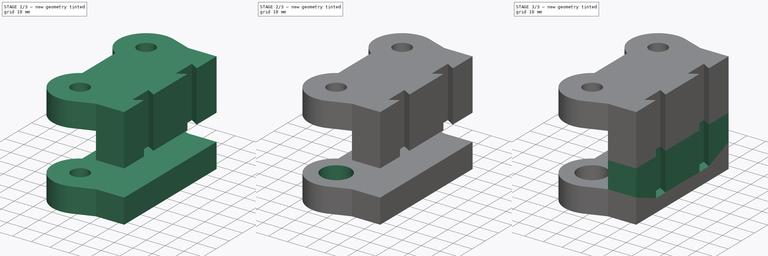
[diagram: build sequence overview — one tinted view per stage of 3, left to right]
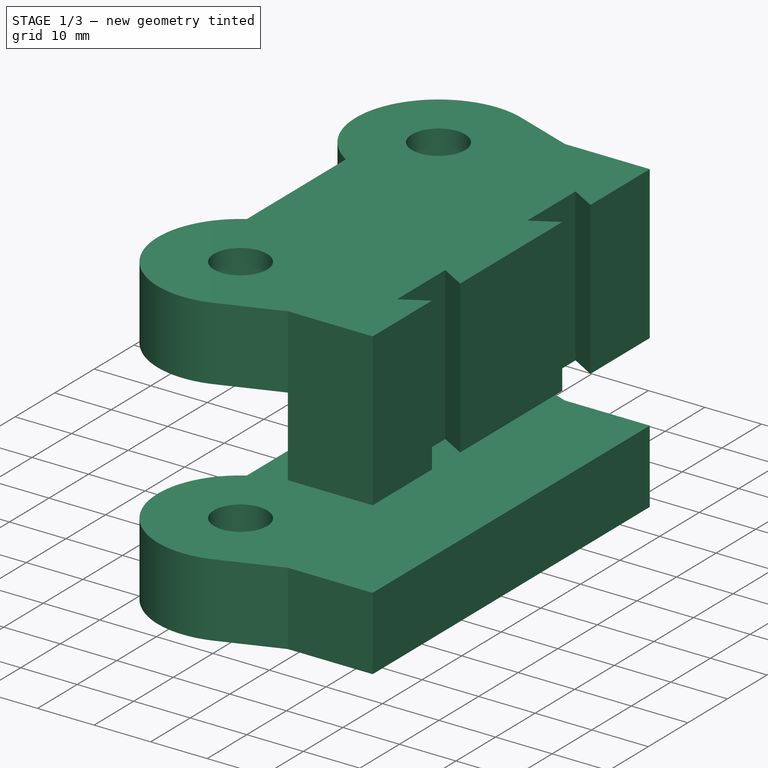
[diagram: stage 1 of 3 — iso view after this stage's code; geometry added in this stage tinted green]
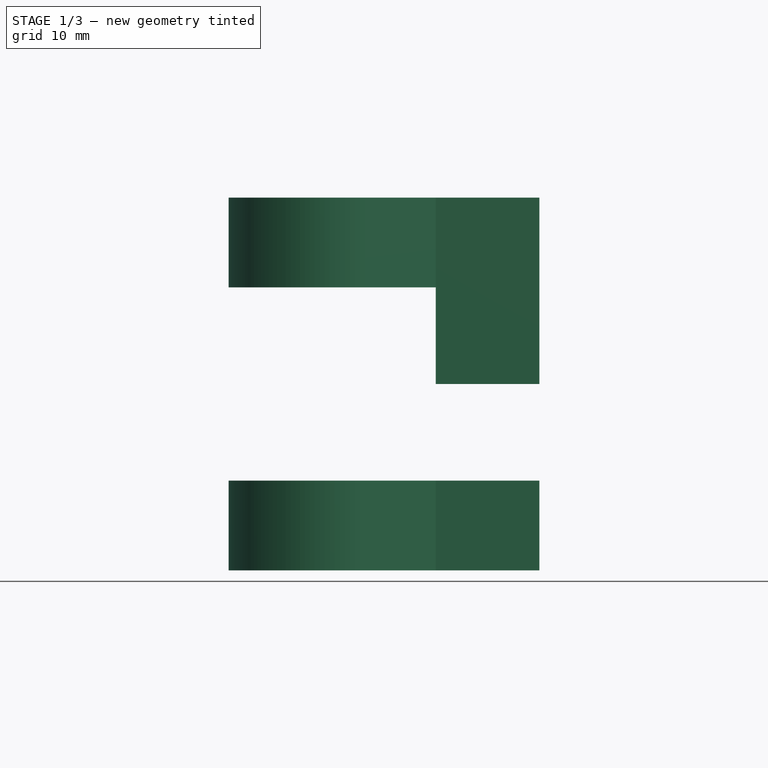
[diagram: stage 1 of 3 — front view after this stage's code; geometry added in this stage tinted green]
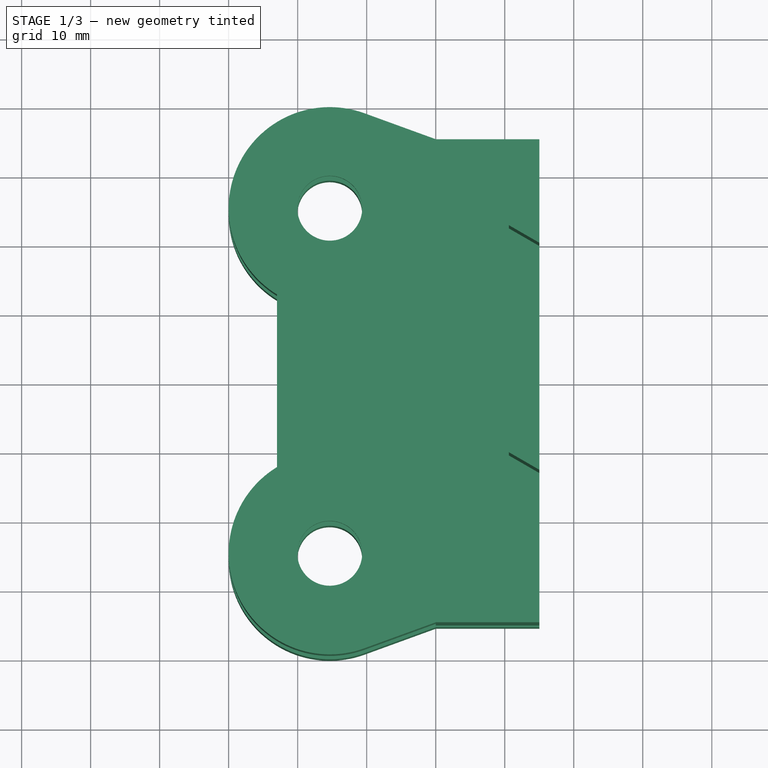
[diagram: stage 1 of 3 — top view after this stage's code; geometry added in this stage tinted green]
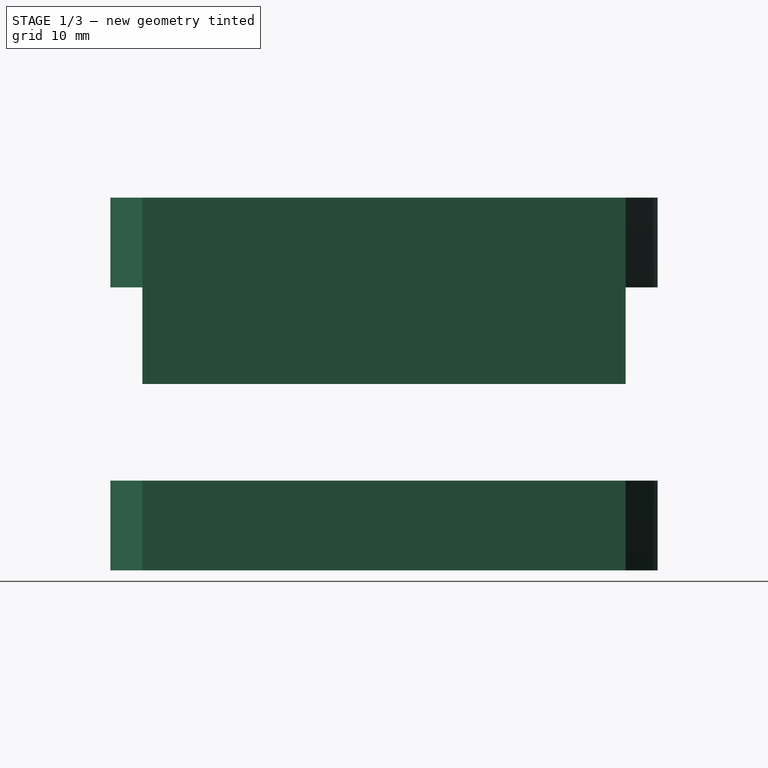
[diagram: stage 1 of 3 — right view after this stage's code; geometry added in this stage tinted green]
FCSTD DOCUMENT  (FreeCAD 0.15R4664 (Git))
Label: z_holder_WIP
License: All rights reserved
LicenseURL: http://en.wikipedia.org/wiki/All_rights_reserved
objects: Sketcher::SketchObject×5, PartDesign::Pocket×3, Part::Feature×3, PartDesign::Pad×2
note: 18 computed .brp shape members not serialized (recipe doc carries the construction recipe); baked Part::Feature solids carry a one-line shape summary decoded from their .brp

FEATURE [Sketcher::SketchObject] Sketch
  Placement = pos=(0,0,16) rot=(1,0,0;3.14159rad)
  sketch-geometry (12):
    g0: ArcOfCircle CenterX=14.65 CenterY=-64.65 CenterZ=0 NormalX=0 NormalY=0 NormalZ=1 Radius=14.65 StartAngle=2.11942 EndAngle=5.06145
    g1: ArcOfCircle CenterX=14.65 CenterY=-14.65 CenterZ=0 NormalX=0 NormalY=0 NormalZ=1 Radius=14.65 StartAngle=1.22173 EndAngle=4.16376
    g2: LineSegment StartX=30.009 StartY=-74.65 StartZ=0 EndX=19.6606 EndY=-78.4165 EndZ=0
    g3: LineSegment StartX=7.00981 StartY=-27.15 StartZ=0 EndX=7.00981 EndY=-52.15 EndZ=0
    g4: LineSegment StartX=19.6606 StartY=-0.883503 StartZ=0 EndX=30.009 EndY=-4.65 EndZ=0
    g5: LineSegment [constr] StartX=14.65 StartY=-14.65 StartZ=0 EndX=14.65 EndY=-64.65 EndZ=0
    g6: LineSegment [constr] StartX=30.009 StartY=-74.65 StartZ=0 EndX=30.009 EndY=-4.65 EndZ=0
    g7: Circle CenterX=14.65 CenterY=-14.65 CenterZ=0 NormalX=0 NormalY=0 NormalZ=1 Radius=4.7
    g8: Circle CenterX=14.65 CenterY=-64.65 CenterZ=0 NormalX=0 NormalY=0 NormalZ=1 Radius=4.7
    g9: LineSegment StartX=30.009 StartY=-74.65 StartZ=0 EndX=45.009 EndY=-74.65 EndZ=0
    g10: LineSegment StartX=45.009 StartY=-74.65 StartZ=0 EndX=45.009 EndY=-4.65 EndZ=0
    g11: LineSegment StartX=45.009 StartY=-4.65 StartZ=0 EndX=30.009 EndY=-4.65 EndZ=0
  constraints (35):
    c: Coincident(g2,g0)
    c: Coincident(g3,g1)
    c: Coincident(g3,g0)
    c: Coincident(g4,g1)
    c: Coincident(g5,g1)
    c: Coincident(g5,g0)
    c: Vertical(g5)
    c: DistanceY(g5) = -50
    c: Radius(g1) = 14.65
    c: Radius(g0) = 14.65
    c: DistanceY(g3) = -25
    c: Tangent(g1,g4) = 1.5708
    c: Tangent(g0,g2) = 1.5708
    c: Angle(g3,g4) = 1.22173
    c: Angle(g2,g3) = 1.22173
    c: Vertical(g3)
    c: Equal(g4,g2)
    c: Tangent(g-2,g1)
    c: Tangent(g1,g-1)
    c: Vertical(g6)
    c: Coincident(g4,g6)
    c: Coincident(g2,g6)
    c: DistanceY(g6) = 70
    c: Coincident(g7,g1)
    c: Radius(g7) = 4.7
    c: Coincident(g8,g0)
    c: Equal(g8,g7)
    c: Coincident(g2,g9)
    c: Horizontal(g9)
    c: Coincident(g9,g10)
    c: Vertical(g10)
    c: Coincident(g10,g11)
    c: Coincident(g11,g4)
    c: Horizontal(g11)
    c: DistanceX(g11) = -15
FEATURE [PartDesign::Pad] Pad
  Length = 13
  Length2 = 100
  Placement = pos=(0,0,16) rot=(1,0,0;3.14159rad)
  Sketch = -> Sketch
  Type = 0
FEATURE [Sketcher::SketchObject] Sketch004
  ExternalGeometry = -> [Pad002]
  Placement = pos=(0,79.3,30) rot=(1,0,0;3.14159rad)
  Support = -> Pad002 [Face13]
  sketch-geometry (11):
    g0: LineSegment [constr] StartX=45.009 StartY=74.65 StartZ=0 EndX=45.009 EndY=59.65 EndZ=0
    g1: LineSegment StartX=45.009 StartY=59.65 StartZ=0 EndX=40.5922 EndY=62.2 EndZ=0
    g2: LineSegment StartX=40.5922 StartY=62.2 StartZ=0 EndX=40.5922 EndY=50 EndZ=0
    g3: LineSegment StartX=40.5922 StartY=50 StartZ=0 EndX=45.009 EndY=52.55 EndZ=0
    g4: LineSegment [constr] StartX=45.009 StartY=52.55 StartZ=0 EndX=45.009 EndY=26.75 EndZ=0
    g5: LineSegment StartX=45.009 StartY=26.75 StartZ=0 EndX=40.5922 EndY=29.3 EndZ=0
    g6: LineSegment StartX=40.5922 StartY=29.3 StartZ=0 EndX=40.5922 EndY=17.1 EndZ=0
    g7: LineSegment StartX=40.5922 StartY=17.1 StartZ=0 EndX=45.009 EndY=19.65 EndZ=0
    g8: LineSegment [constr] StartX=45.009 StartY=19.65 StartZ=0 EndX=45.009 EndY=4.65 EndZ=0
    g9: LineSegment StartX=45.009 StartY=59.65 StartZ=0 EndX=45.009 EndY=52.55 EndZ=0
    g10: LineSegment StartX=45.009 StartY=26.75 StartZ=0 EndX=45.009 EndY=19.65 EndZ=0
  constraints (30):
    c: Coincident(g-3,g0)
    c: Vertical(g0)
    c: Coincident(g0,g1)
    c: Coincident(g1,g2)
    c: Vertical(g2)
    c: Coincident(g2,g3)
    c: Coincident(g3,g4)
    c: Vertical(g4)
    c: Coincident(g4,g5)
    c: Coincident(g5,g6)
    c: Vertical(g6)
    c: Coincident(g6,g7)
    c: Coincident(g7,g8)
    c: Coincident(g8,g-4)
    c: Vertical(g8)
    c: Equal(g0,g8)
    c: DistanceY(g0) = -15
    c: Coincident(g9,g0)
    c: Coincident(g9,g3)
    c: Vertical(g9)
    c: DistanceY(g9) = -7.1
    c: Coincident(g10,g4)
    c: Coincident(g10,g7)
    c: Equal(g10,g9)
    c: DistanceY(g2) = -12.2
    c: Angle(g1,g9) = 2.0944
    c: Angle(g9,g3) = 2.0944
    c: Equal(g6,g2)
    c: Angle(g5,g10) = 2.0944
    c: Angle(g10,g7) = 2.0944
FEATURE [PartDesign::Pocket] Pocket002
  Length = 5
  Placement = pos=(0,79.3,44) rot=(0,0,1;0rad)
  Sketch = -> Sketch004
  Type = 1
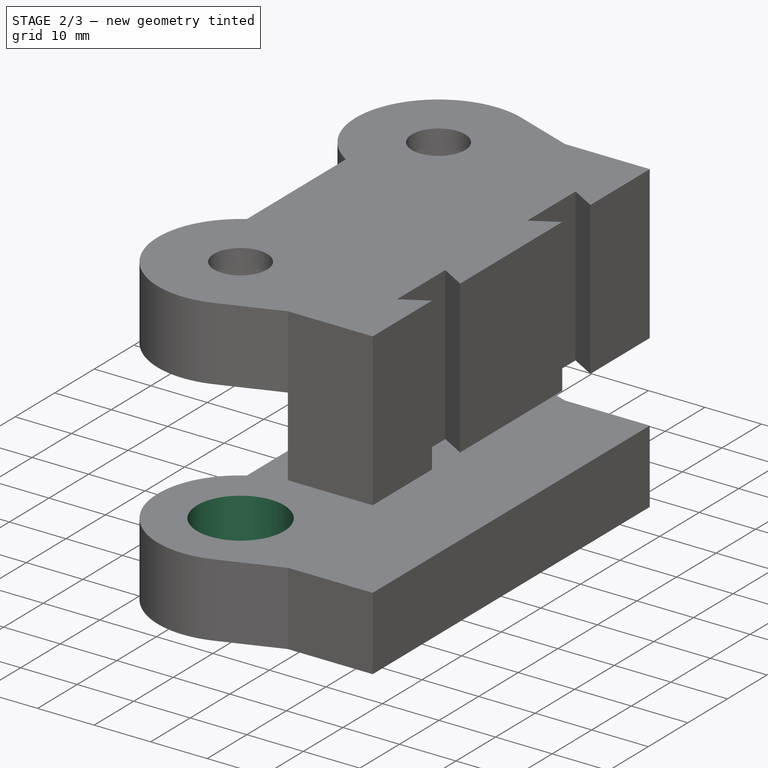
[diagram: stage 2 of 3 — iso view after this stage's code; geometry added in this stage tinted green]
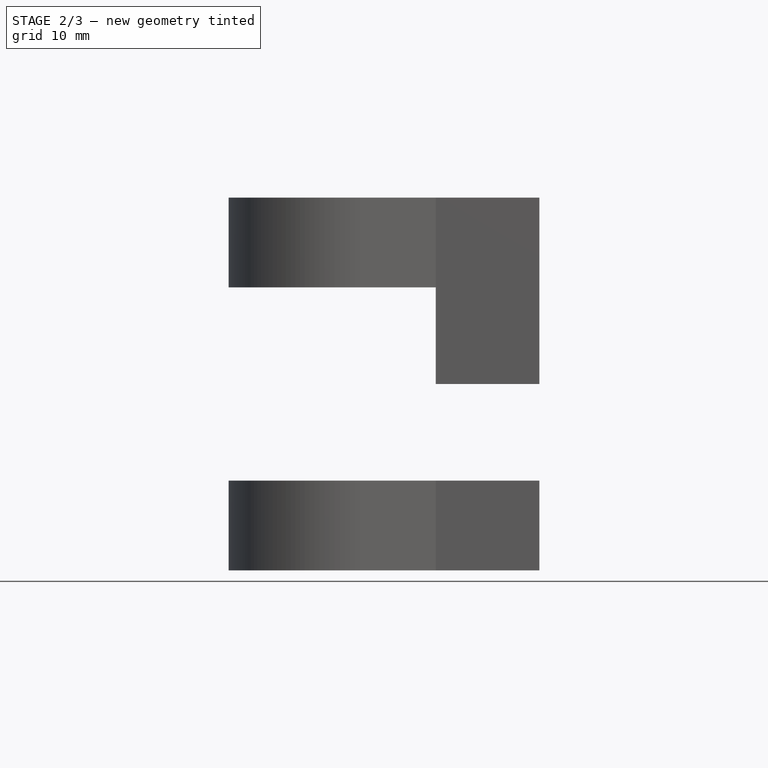
[diagram: stage 2 of 3 — front view after this stage's code; geometry added in this stage tinted green]
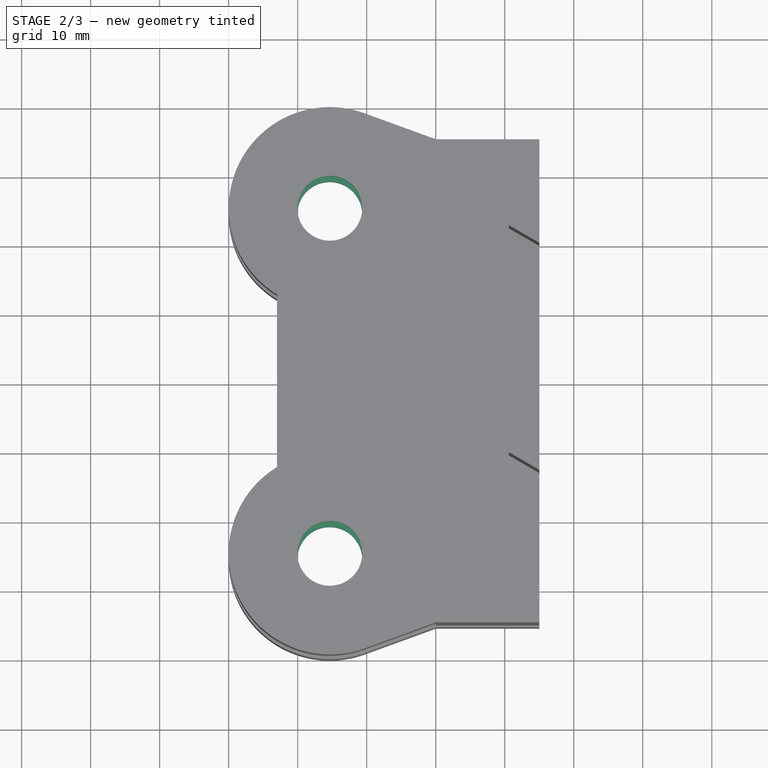
[diagram: stage 2 of 3 — top view after this stage's code; geometry added in this stage tinted green]
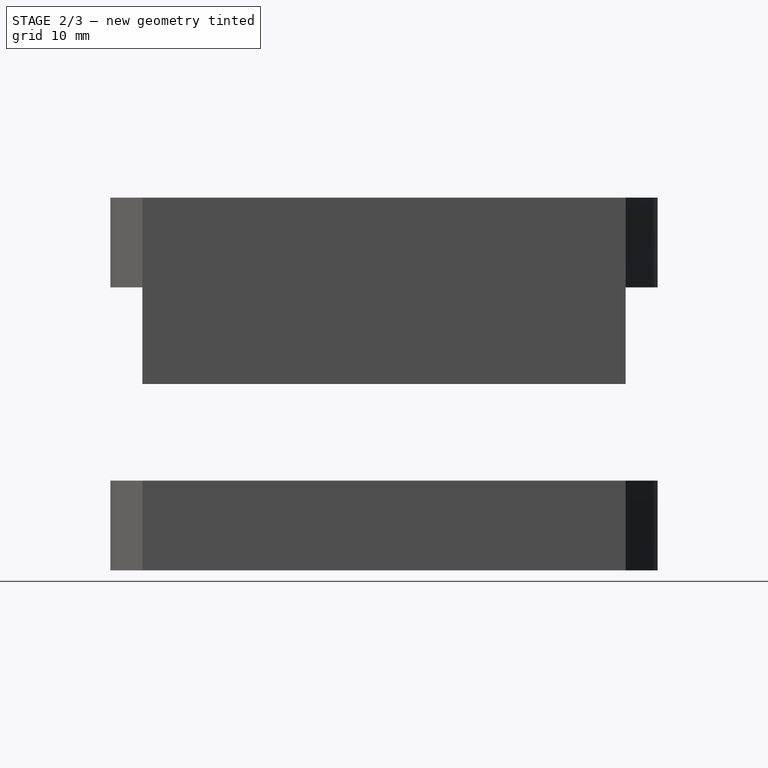
[diagram: stage 2 of 3 — right view after this stage's code; geometry added in this stage tinted green]
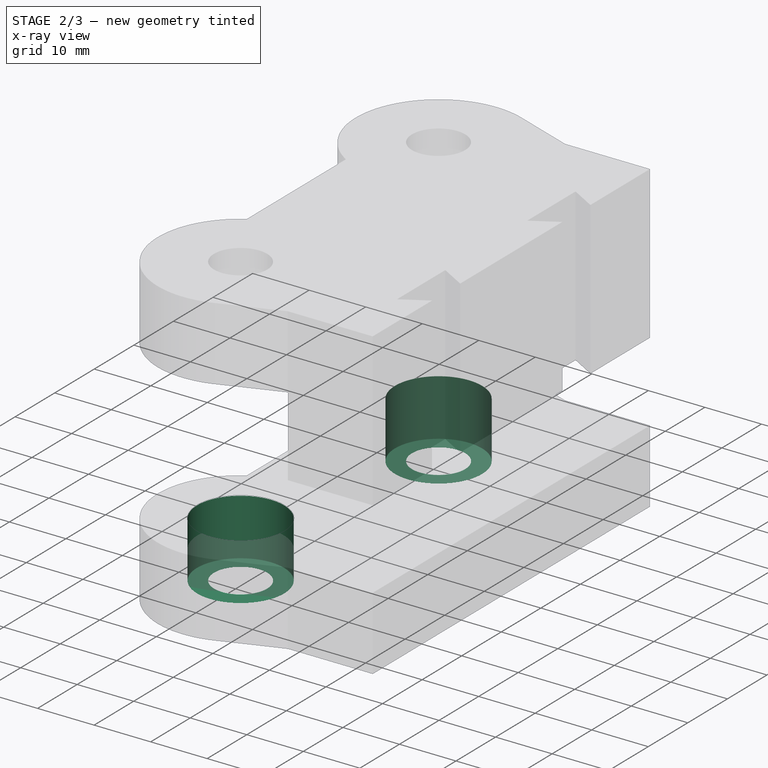
[diagram: stage 2 of 3 — x-ray composite at the iso view; earlier geometry ghosted, this stage's added geometry solid]
FEATURE [Sketcher::SketchObject] Sketch001
  ExternalGeometry = -> [Pad]
  Placement = pos=(0,0,16) rot=(0,0,1;0rad)
  Support = -> Pad [Face11]
  sketch-geometry (2):
    g0: Circle CenterX=14.65 CenterY=64.65 CenterZ=0 NormalX=0 NormalY=0 NormalZ=1 Radius=7.7
    g1: Circle CenterX=14.65 CenterY=14.65 CenterZ=0 NormalX=0 NormalY=0 NormalZ=1 Radius=7.7
  constraints (4):
    c: Coincident(g0,g-4)
    c: Radius(g0) = 7.7
    c: Coincident(g1,g-3)
    c: Equal(g1,g0)
FEATURE [PartDesign::Pocket] Pocket
  Length = 10
  Placement = pos=(0,0,16) rot=(1,0,0;3.14159rad)
  Sketch = -> Sketch001
  Type = 0
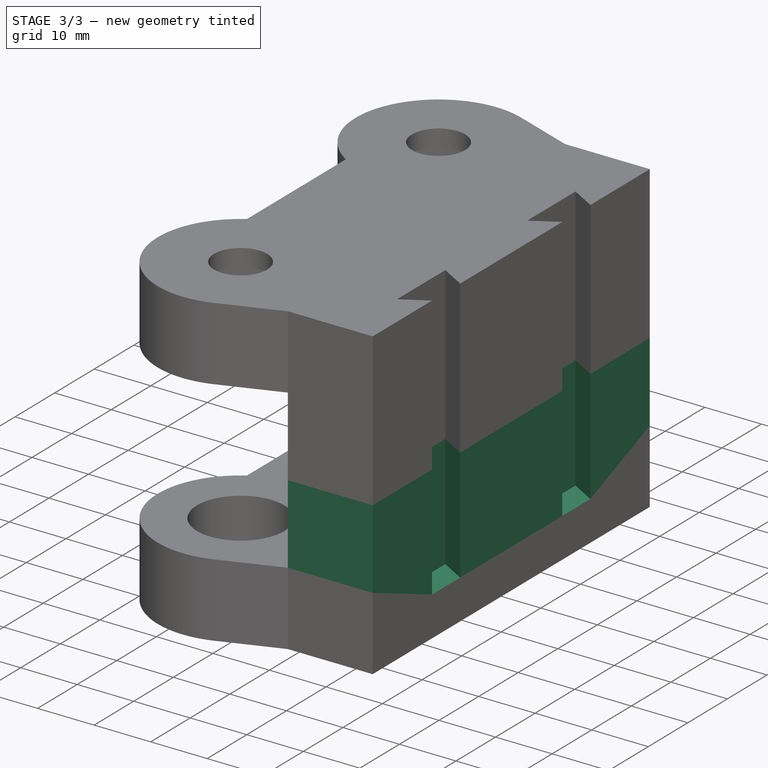
[diagram: stage 3 of 3 — iso view after this stage's code; geometry added in this stage tinted green]
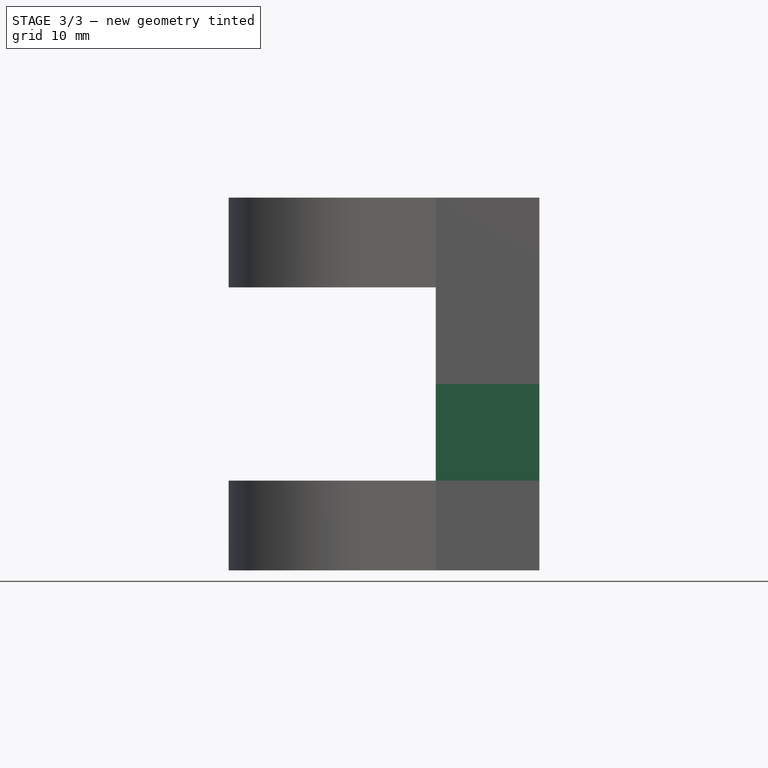
[diagram: stage 3 of 3 — front view after this stage's code; geometry added in this stage tinted green]
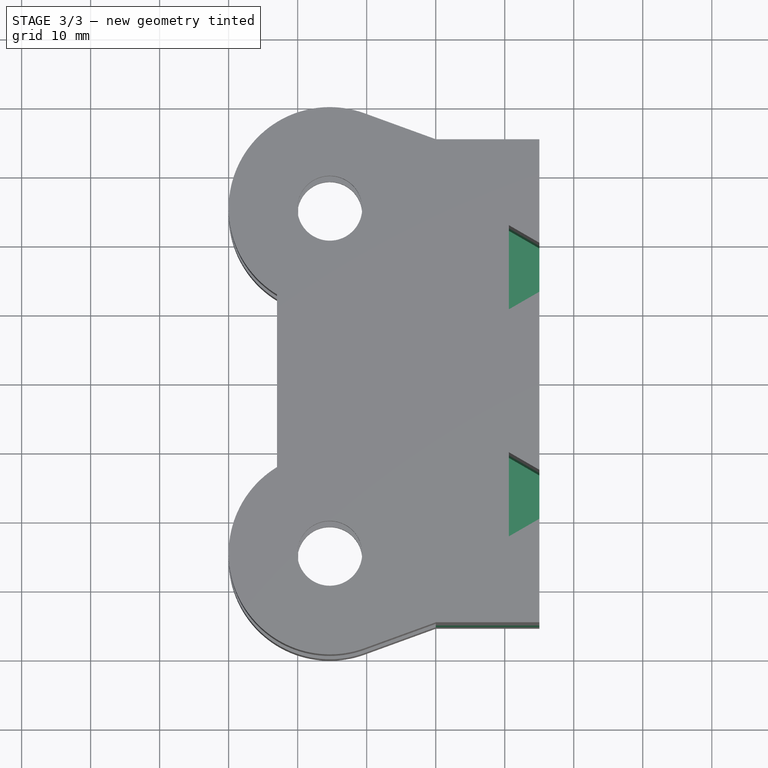
[diagram: stage 3 of 3 — top view after this stage's code; geometry added in this stage tinted green]
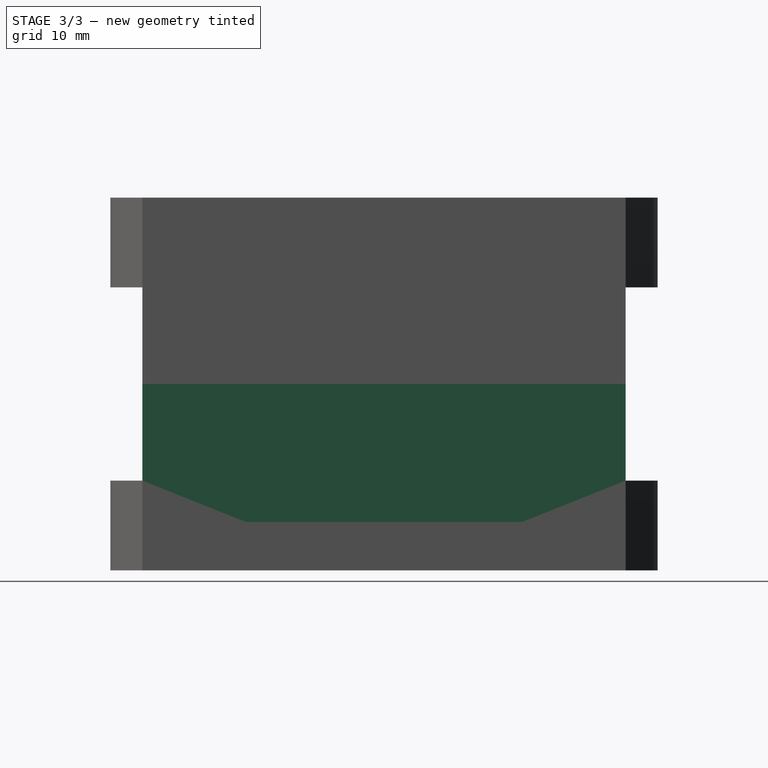
[diagram: stage 3 of 3 — right view after this stage's code; geometry added in this stage tinted green]
FEATURE [Sketcher::SketchObject] Sketch002
  ExternalGeometry = -> [Pocket]
  Placement = pos=(0,0,16) rot=(0,0,1;0rad)
  Support = -> Pocket [Face4]
  sketch-geometry (4):
    g0: LineSegment StartX=45.009 StartY=74.65 StartZ=0 EndX=30.009 EndY=74.65 EndZ=0
    g1: LineSegment StartX=30.009 StartY=74.65 StartZ=0 EndX=30.009 EndY=4.65 EndZ=0
    g2: LineSegment StartX=30.009 StartY=4.65 StartZ=0 EndX=45.009 EndY=4.65 EndZ=0
    g3: LineSegment StartX=45.009 StartY=4.65 StartZ=0 EndX=45.009 EndY=74.65 EndZ=0
  constraints (10):
    c: Coincident(g0,g1)
    c: Coincident(g1,g2)
    c: Coincident(g2,g3)
    c: Coincident(g3,g0)
    c: Horizontal(g0)
    c: Horizontal(g2)
    c: Vertical(g1)
    c: Vertical(g3)
    c: Coincident(g0,g-4)
    c: Coincident(g1,g-5)
FEATURE [PartDesign::Pad] Pad001
  Length = 14
  Length2 = 100
  Placement = pos=(0,0,16) rot=(1,0,0;3.14159rad)
  Sketch = -> Sketch002
  Type = 0
FEATURE [Part::Feature] Part__Feature  label="LM8uu001"
  Placement = pos=(14.65,14.65,18) rot=(0,0,1;0rad)
  shape: bbox 15 x 15 x 24 mm, 20 faces (baked)
FEATURE [Part::Feature] Part__Feature001  label="LM8uu002"
  Placement = pos=(14.65,14.65,42) rot=(0,0,1;0rad)
  shape: bbox 15 x 15 x 24 mm, 20 faces (baked)
FEATURE [Sketcher::SketchObject] Sketch003
  ExternalGeometry = -> [Pad001]
  Placement = pos=(0,0,30) rot=(0,0,1;0rad)
  Support = -> Pad001 [Face13]
  sketch-geometry (11):
    g0: LineSegment [constr] StartX=45.009 StartY=74.65 StartZ=0 EndX=45.009 EndY=59.65 EndZ=0
    g1: LineSegment StartX=45.009 StartY=59.65 StartZ=0 EndX=40.5922 EndY=62.2 EndZ=0
    g2: LineSegment StartX=40.5922 StartY=62.2 StartZ=0 EndX=40.5922 EndY=50 EndZ=0
    g3: LineSegment StartX=40.5922 StartY=50 StartZ=0 EndX=45.009 EndY=52.55 EndZ=0
    g4: LineSegment [constr] StartX=45.009 StartY=52.55 StartZ=0 EndX=45.009 EndY=26.75 EndZ=0
    g5: LineSegment StartX=45.009 StartY=26.75 StartZ=0 EndX=40.5922 EndY=29.3 EndZ=0
    g6: LineSegment StartX=40.5922 StartY=29.3 StartZ=0 EndX=40.5922 EndY=17.1 EndZ=0
    g7: LineSegment StartX=40.5922 StartY=17.1 StartZ=0 EndX=45.009 EndY=19.65 EndZ=0
    g8: LineSegment [constr] StartX=45.009 StartY=19.65 StartZ=0 EndX=45.009 EndY=4.65 EndZ=0
    g9: LineSegment StartX=45.009 StartY=26.75 StartZ=0 EndX=45.009 EndY=19.65 EndZ=0
    g10: LineSegment StartX=45.009 StartY=52.55 StartZ=0 EndX=45.009 EndY=59.65 EndZ=0
  constraints (31):
    c: Coincident(g-3,g0)
    c: Vertical(g0)
    c: Coincident(g0,g1)
    c: Coincident(g1,g2)
    c: Vertical(g2)
    c: Coincident(g2,g3)
    c: Coincident(g3,g4)
    c: Vertical(g4)
    c: Coincident(g4,g5)
    c: Coincident(g5,g6)
    c: Coincident(g6,g7)
    c: Coincident(g7,g8)
    c: Coincident(g8,g-4)
    c: Vertical(g8)
    c: Coincident(g9,g4)
    c: Coincident(g9,g7)
    c: Vertical(g9)
    c: Coincident(g10,g3)
    c: Vertical(g10)
    c: Vertical(g6)
    c: Angle(g5,g9) = 2.0944
    c: Angle(g9,g7) = 2.0944
    c: DistanceY(g9) = -7.1
    c: DistanceY(g6) = -12.2
    c: Equal(g0,g8)
    c: DistanceY(g0) = -15
    c: Coincident(g0,g10)
    c: Equal(g3,g7)
    c: Equal(g2,g6)
    c: Equal(g10,g9)
    c: Angle(g1,g10) = 2.0944
FEATURE [Part::Feature] Pad002
  Placement = pos=(0,79.3,44) rot=(0,0,1;0rad)
  shape: bbox 45.01 x 79.3 x 27 mm, 18 faces (baked)
FEATURE [PartDesign::Pocket] Pocket001
  Length = 20
  Placement = pos=(0,0,16) rot=(1,0,0;3.14159rad)
  Sketch = -> Sketch003
  Type = 0
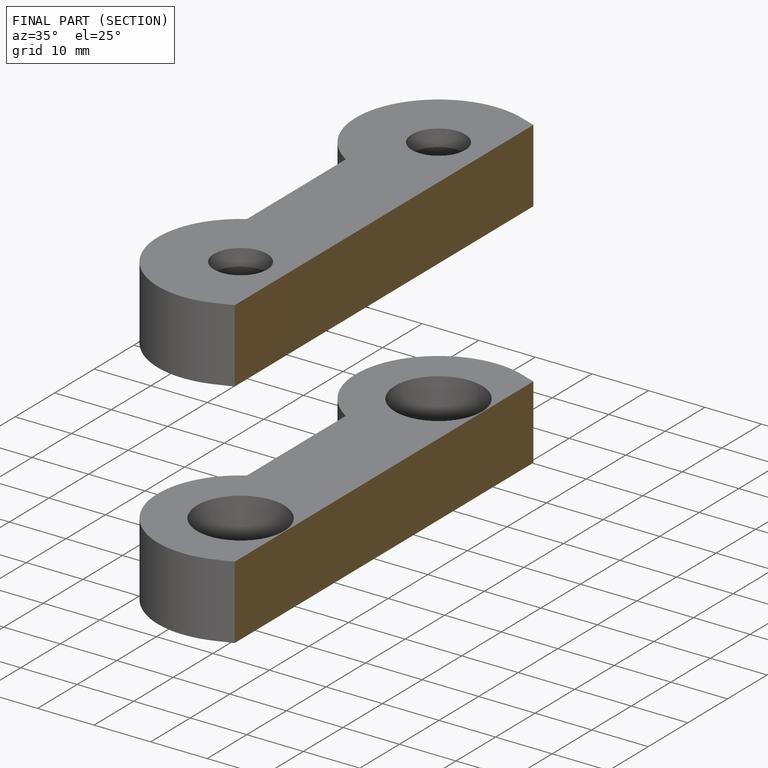
[diagram: finished part — half-section view (interior)]
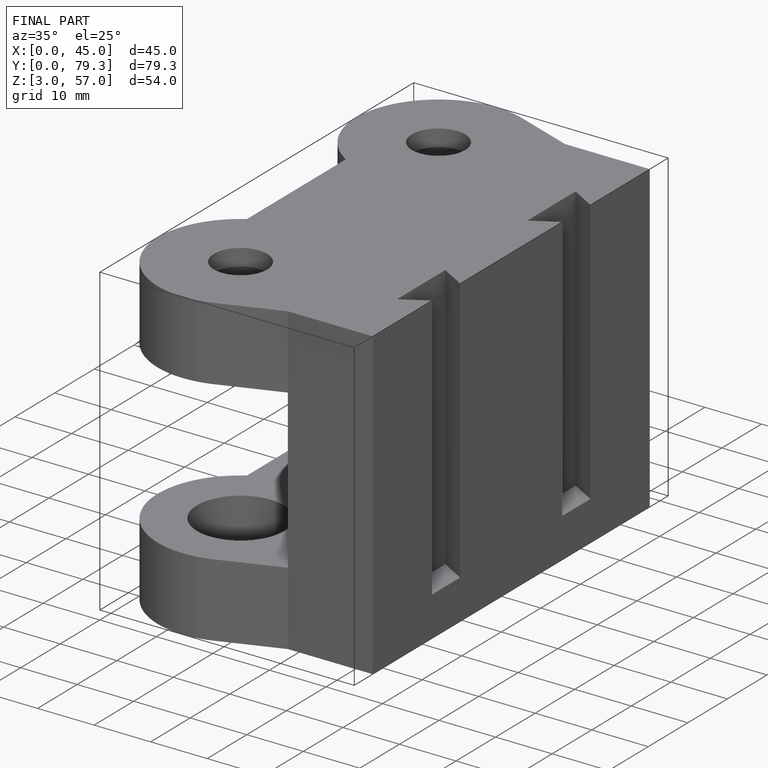
[diagram: finished part — iso view with bounding-box wireframe]
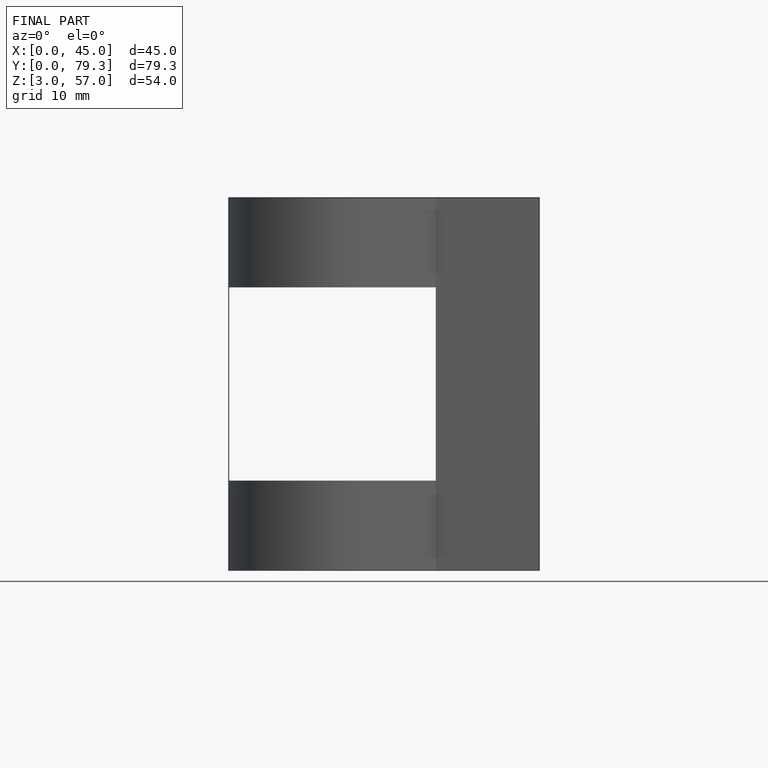
[diagram: finished part — front view with bounding-box wireframe]
